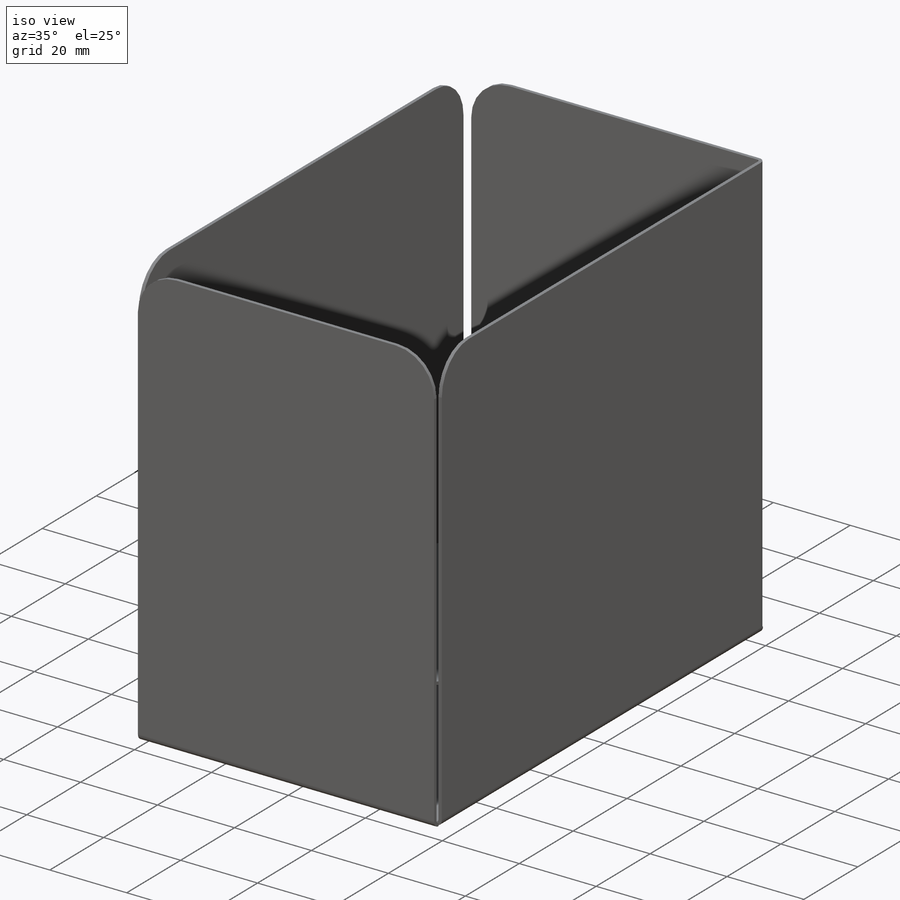
[diagram: iso view]
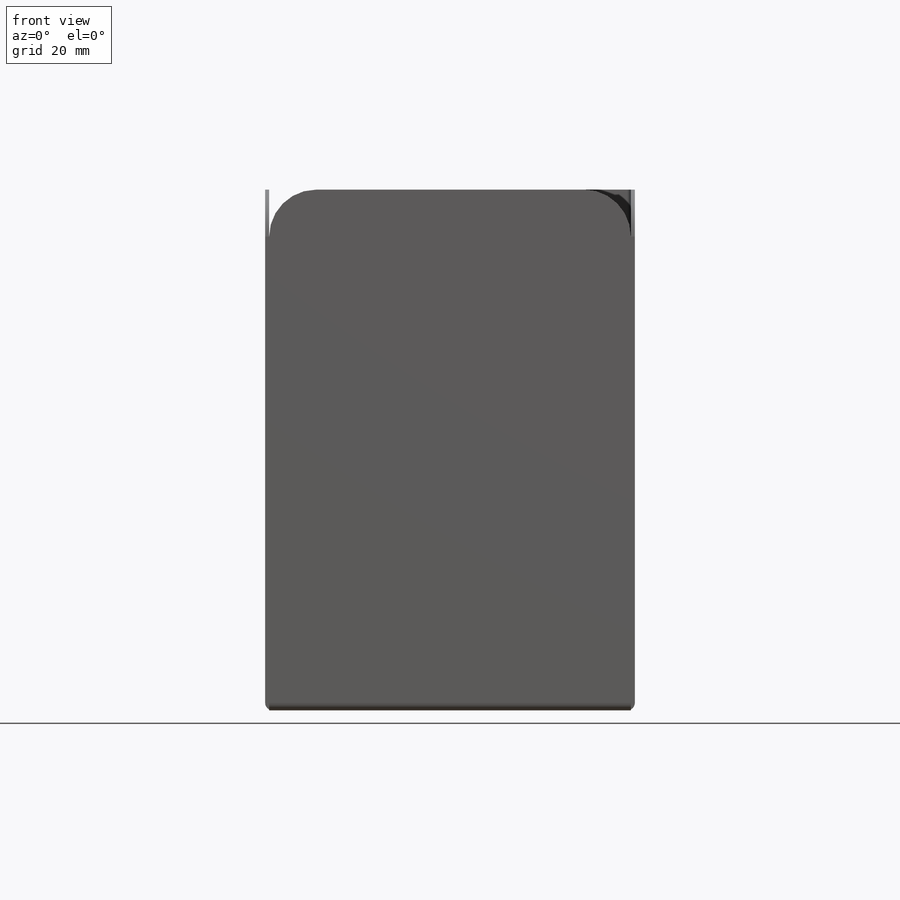
[diagram: front view]
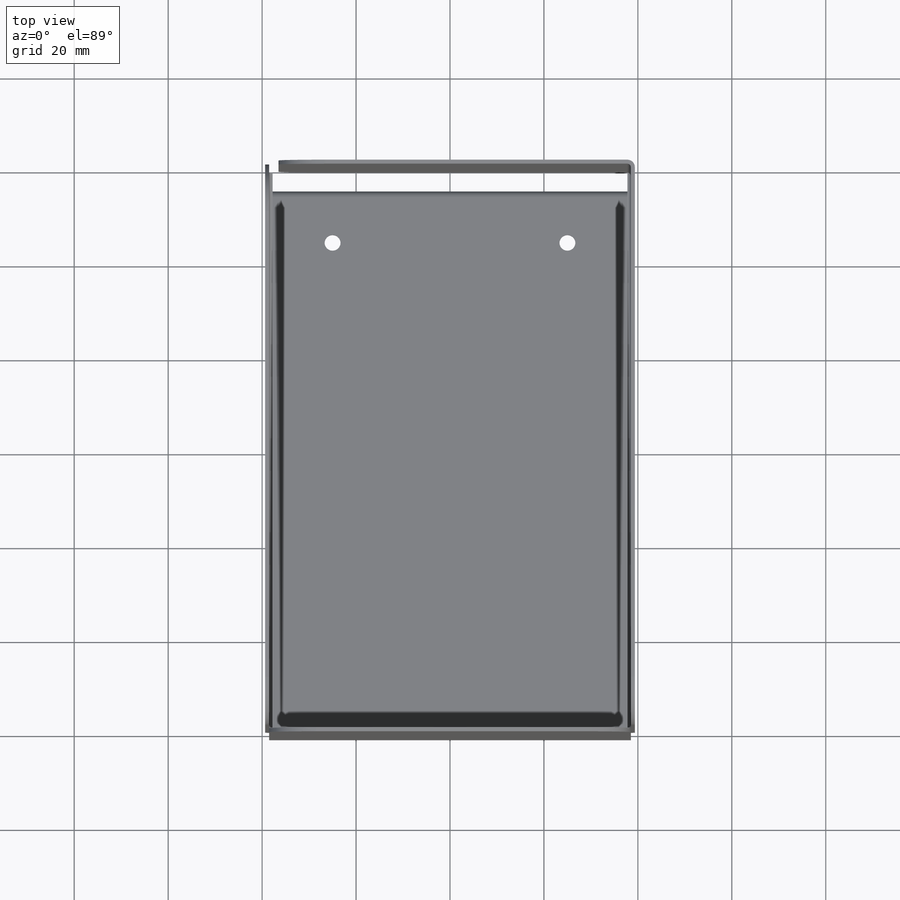
[diagram: top view]
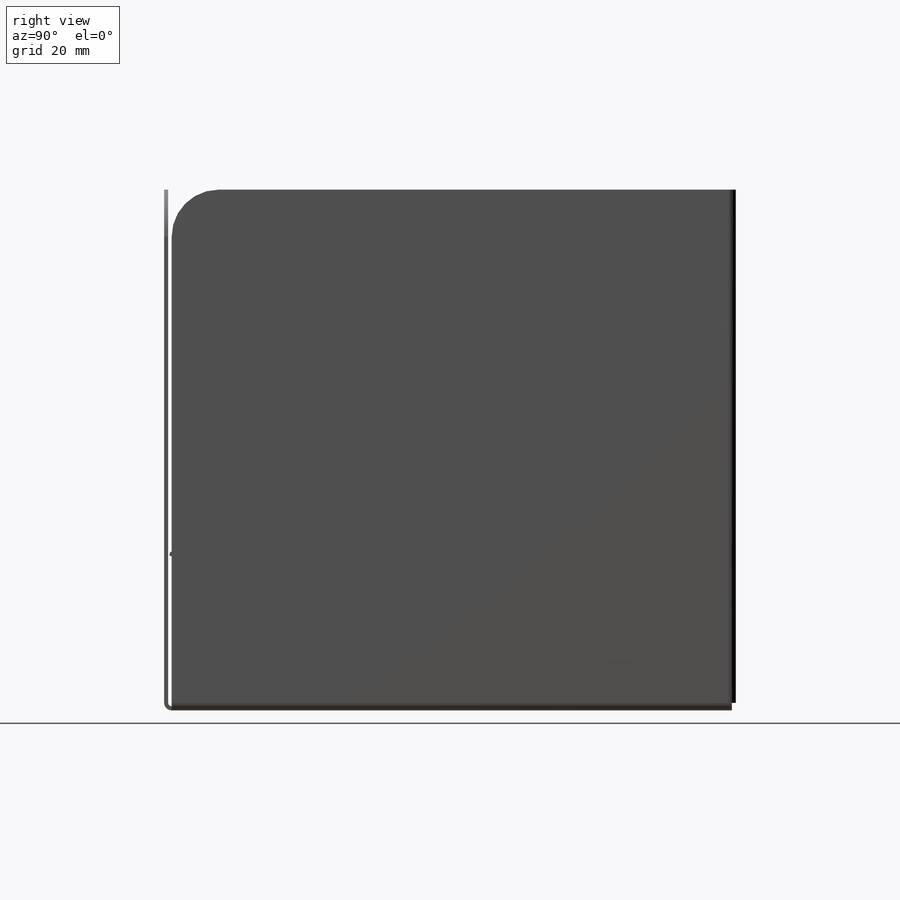
[diagram: right view]
SOLIDWORKS PART (.sldprt)
format: sldprt  version: not decoded by parser v0  size: 404,480 bytes
history: native  units: mm
features: sketch x24, sheet_metal_op x12, hole x7, material x1, plane x1, fillet x1 + 20 further entries (+12 scaffold rows collapsed; 7 parser-record rows omitted)
feature tree (85):
  scaffold x12  (default folders/planes/origin — collapsed)
  material  "Material <not specified>"
  sketch  "Sketch1"  dims[c1.D1=120.0mm c1.D2=77.0mm c2.D1=0.7366mm c2.D2=0.5 c2.D3=0.0mm c2.D6=500.0mm]
  sheet_metal_op  "Base-Flange1"
  plane  "Plane2"
  sketch  "Sketch8"  dims[c1.D1=160.0mm c2.D1=0.7366mm c2.D4=90.0deg c2.D5=1.0 c2.D8=0.43mm c2.D9=0.43mm c3.D1=0.7366mm c3.D2=500.0mm c3.D3=0.0mm c3.D6=10.0mm c3.D7=110.0mm c3.Edge-Flange2=0.0]
  sketch  "Sketch11"
  sheet_metal_op  "EdgeBend2"  Edge-Flange3=0
  sketch  "Sketch15"
  sheet_metal_op  "EdgeBend3"  Edge-Flange4=0
  sketch  "Sketch18"
  sheet_metal_op  "EdgeBend4"  Edge-Flange8=0
  sketch  "Sketch39"
  sheet_metal_op  "EdgeBend9"
  hole  "M3 Clearance Hole3"  Diameter=3.4mm Depth=25.4mm
  sketch  "Sketch47"
  sketch  "Sketch46"  dims[hole-wizard template sketch: 47 standard entries collapsed; hole parameters kept: c15.Hole Depth=25.4mm c15.D3=~14.816244mm c15.Drill Angle=118.0deg]
  fillet  "Fillet1"  Radius=10mm
  sketch  "Bend-Lines1"
  sketch  "Bounding-Box1"
  sheet_metal_op  "Sheet-Metal(1)"
  "Flat-Pattern(1)"
  sketch  "Bend-Lines2"
  sketch  "Bounding-Box2"
  parser-record x7  (decoder bookkeeping rows leaked as tree rows — omitted from the tree; the rows remain in map.json)
  hole  "Sheet-Metal(2)"  Diameter=0.7366mm
  sheet_metal_op  "Flat-Pattern(1)"
  sketch  "Bend-Lines2"
  sketch  "Bounding-Box2"
  hole  "Sheet-Metal(3)"  Diameter=0.7366mm
  sheet_metal_op  "Flat-Pattern(1)"
  sketch  "Bend-Lines2"
  sketch  "Bounding-Box2"
  "Flatten-<EdgeBend1>1"
  "Flatten-<EdgeBend2>1"
  hole  "Sheet-Metal(4)"  Diameter=0.7366mm
  sheet_metal_op  "Flat-Pattern(1)"
  sketch  "Bend-Lines2"
  sketch  "Bounding-Box2"
  "Flatten-<EdgeBend1>1"
  "Flatten-<EdgeBend2>1"
  "Flatten-<EdgeBend3>1"
  hole  "Sheet-Metal(7)"  Diameter=0.7366mm
  sheet_metal_op  "Flat-Pattern(1)"
  sketch  "Bend-Lines2"
  sketch  "Bounding-Box2"
  "Flatten-<EdgeBend1>1"
  "Flatten-<EdgeBend2>1"
  "Flatten-<EdgeBend3>1"
  "Flatten-<EdgeBend4>1"
  hole  "Sheet-Metal(11)"  Diameter=0.7366mm
  sheet_metal_op  "Flat-Pattern(1)"
  sketch  "Bend-Lines2"
  sketch  "Bounding-Box2"
  "Flatten-<EdgeBend1>1"
  "Flatten-<EdgeBend2>1"
  "Flatten-<EdgeBend3>1"
  "Flatten-<EdgeBend4>1"
  "Flatten-<EdgeBend9>1"
  hole  "Sheet-Metal(14)"  Diameter=0.7366mm
  sheet_metal_op  "Flat-Pattern(1)"
  sketch  "Bend-Lines2"
  sketch  "Bounding-Box2"
  "Flatten-<EdgeBend1>1"
  "Flatten-<EdgeBend2>1"
  "Flatten-<EdgeBend3>1"
  "Flatten-<EdgeBend4>1"
  "Flatten-<EdgeBend9>1"
decode coverage: 14 of 44 modeling features carry decoded parameters; 20 rows unclassified (native names shown)
note: ~ marks probable driven/reference dimensions
note: suppression state not decoded; provenance and decode notes live in map.json
